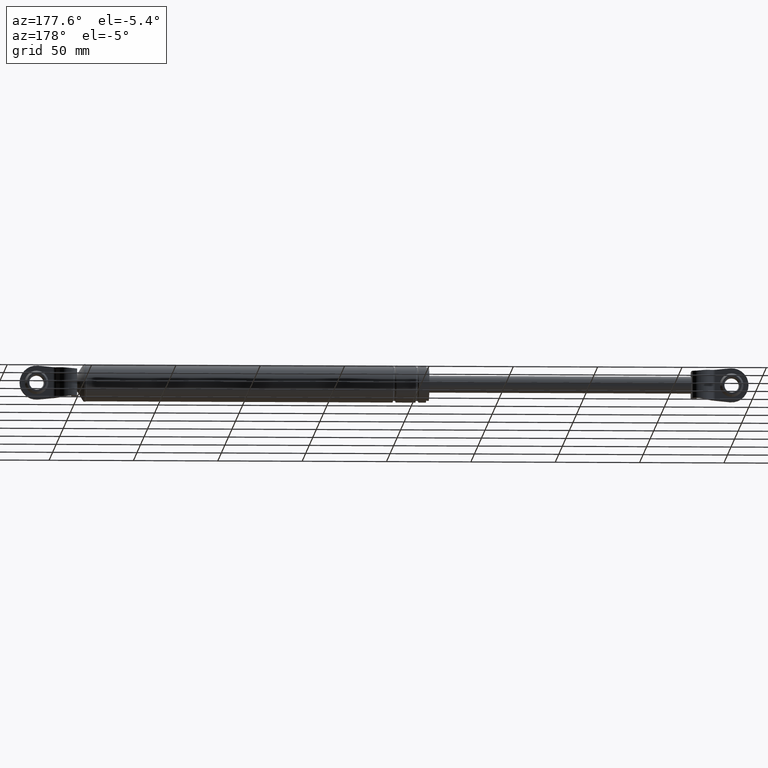
[diagram: clean part render]
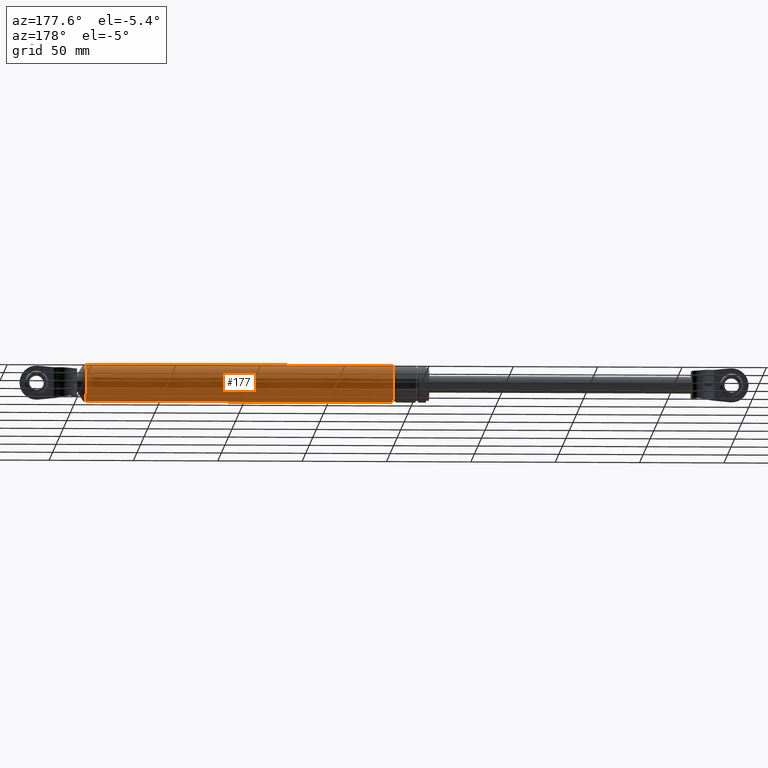
[diagram: same view with one face highlighted and labeled with its STEP entity id]
A machine part, auxiliary view. The second image highlights one B-rep face of the part: STEP entity #177.
In plain terms, the highlighted cylindrical surface (edge-blend (fillet) strip) has radius 11 mm, axis along (1, 0, 0).
Its self-contained STEP definition (entity closure, byte-faithful):
#177=ADVANCED_FACE('',(#925),#924,.T.);
#924=CYLINDRICAL_SURFACE('',#2197,1.10000000000E+001);
#925=FACE_OUTER_BOUND('',#2198,.T.);
#2194=CARTESIAN_POINT('',(0.00000000000E+000,0.00000000000E+000,1.88977754832E+002));
#2195=DIRECTION('',(1.00000000000E+000,-0.00000000000E+000,-0.00000000000E+000));
#2196=DIRECTION('',(-0.00000000000E+000,-0.00000000000E+000,-1.00000000000E+000));
#2197=AXIS2_PLACEMENT_3D('',#2194,#2195,#2196);
#2198=EDGE_LOOP('',(#3114,#3115,#3116,#3117));
#3114=ORIENTED_EDGE('',*,*,#3727,.T.);
#3115=ORIENTED_EDGE('',*,*,#3728,.F.);
#3116=ORIENTED_EDGE('',*,*,#3606,.F.);
#3117=ORIENTED_EDGE('',*,*,#3729,.T.);
#3606=EDGE_CURVE('',#4324,#4325,#4326,.T.);
#3727=EDGE_CURVE('',#5108,#5115,#5128,.T.);
#3728=EDGE_CURVE('',#4325,#5115,#5134,.T.);
#3729=EDGE_CURVE('',#4324,#5108,#5140,.T.);
#4324=VERTEX_POINT('',#6671);
#4325=VERTEX_POINT('',#6672);
#4326=CIRCLE('',#6676,1.10000000000E+001);
#5108=VERTEX_POINT('',#7166);
#5115=VERTEX_POINT('',#7169);
#5128=CIRCLE('',#7179,1.10000000000E+001);
#5134=(BOUNDED_CURVE() B_SPLINE_CURVE(1,(#7180,#7181),.UNSPECIFIED.,.F.,.F.) B_SPLINE_CURVE_WITH_KNOTS((2,2),(4.95063109323E-002,9.50493688730E-001),.UNSPECIFIED.) CURVE() GEOMETRIC_REPRESENTATION_ITEM() RATIONAL_B_SPLINE_CURVE((1.00000000000E+000,1.00000000000E+000)) REPRESENTATION_ITEM('') );
#5140=(BOUNDED_CURVE() B_SPLINE_CURVE(1,(#7182,#7183),.UNSPECIFIED.,.F.,.F.) B_SPLINE_CURVE_WITH_KNOTS((2,2),(4.95063111094E-002,9.50493688891E-001),.UNSPECIFIED.) CURVE() GEOMETRIC_REPRESENTATION_ITEM() RATIONAL_B_SPLINE_CURVE((7.50000000000E-001,7.50000000000E-001)) REPRESENTATION_ITEM('') );
#6671=CARTESIAN_POINT('',(2.08960362798E+002,0.00000000000E+000,1.99977754832E+002));
#6672=CARTESIAN_POINT('',(2.08960362798E+002,5.92118946467E-016,1.77977754832E+002));
#6673=CARTESIAN_POINT('',(2.08960362798E+002,0.00000000000E+000,1.88977754832E+002));
#6674=DIRECTION('',(-1.00000000000E+000,0.00000000000E+000,0.00000000000E+000));
#6675=DIRECTION('',(0.00000000000E+000,-1.22460635382E-016,1.00000000000E+000));
#6676=AXIS2_PLACEMENT_3D('',#6673,#6674,#6675);
#7166=CARTESIAN_POINT('',(3.90954811100E+002,0.00000000000E+000,1.99977754832E+002));
#7169=CARTESIAN_POINT('',(3.90954811100E+002,5.92118946467E-016,1.77977754832E+002));
#7176=CARTESIAN_POINT('',(3.90954811100E+002,0.00000000000E+000,1.88977754832E+002));
#7177=DIRECTION('',(-1.00000000000E+000,0.00000000000E+000,0.00000000000E+000));
#7178=DIRECTION('',(0.00000000000E+000,-1.22460635382E-016,1.00000000000E+000));
#7179=AXIS2_PLACEMENT_3D('',#7176,#7177,#7178);
#7180=CARTESIAN_POINT('',(2.08960362762E+002,0.00000000000E+000,1.77977754832E+002));
#7181=CARTESIAN_POINT('',(3.90954811068E+002,0.00000000000E+000,1.77977754832E+002));
#7182=CARTESIAN_POINT('',(2.08960362798E+002,0.00000000000E+000,1.99977754832E+002));
#7183=CARTESIAN_POINT('',(3.90954811100E+002,0.00000000000E+000,1.99977754832E+002));